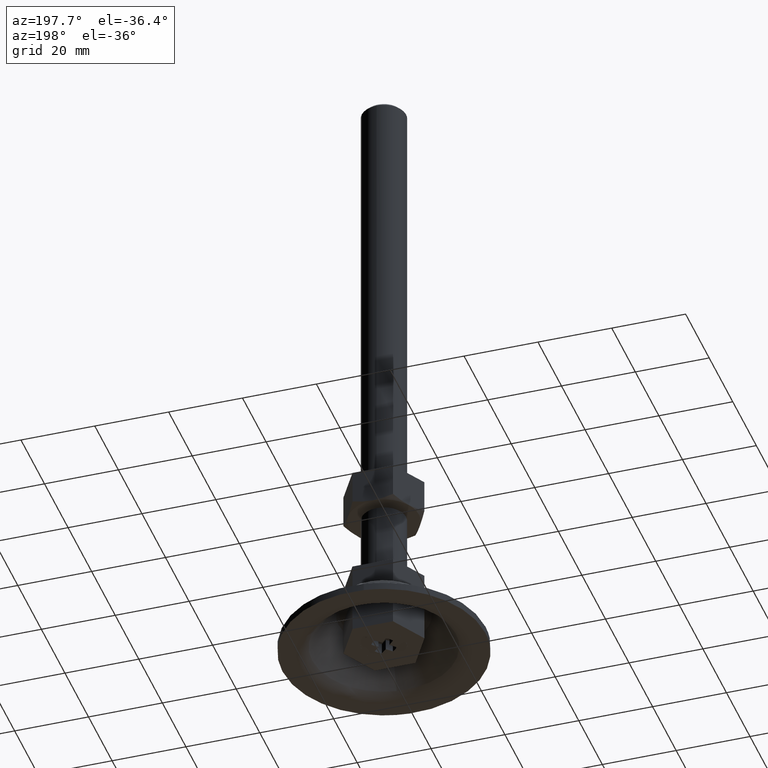
[diagram: clean part render]
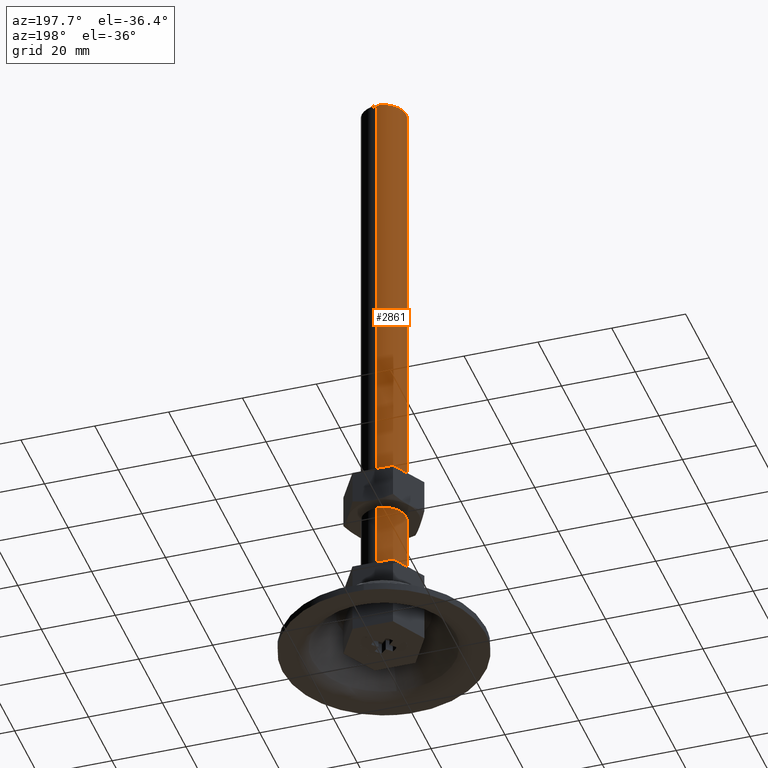
[diagram: same view with one face highlighted and labeled with its STEP entity id]
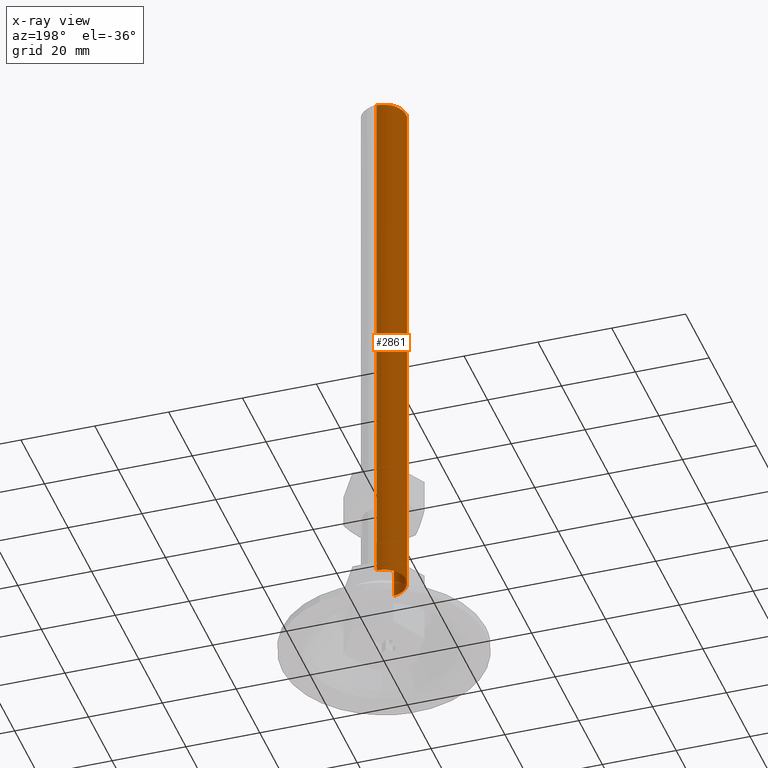
[diagram: x-ray of the same camera — body ghosted, the highlighted face saturated]
A machine part, auxiliary view. The second image highlights one B-rep face of the part: STEP entity #2861.
The next image is the same camera in x-ray: the body ghosted, the highlighted face saturated — about 1% of this face is hidden behind the body in this view.
In plain terms, the highlighted face is a freeform B-spline surface patch.
Its self-contained STEP definition (entity closure, byte-faithful):
#2618=CARTESIAN_POINT('',(-0.744768012860743,-5.953597282905475,171.0));
#2619=VERTEX_POINT('',#2618);
#2676=CARTESIAN_POINT('',(0.052359213310933,5.999771538382044,171.000000000000200));
#2677=VERTEX_POINT('',#2676);
#2683=CARTESIAN_POINT('',(-6.0,0.0,171.0));
#2684=VERTEX_POINT('',#2683);
#2685=CARTESIAN_POINT('',(-6.0,0.0,171.0));
#2686=CARTESIAN_POINT('',(-6.0,6.0,170.999999999999940));
#2687=CARTESIAN_POINT('',(0.0,6.0,171.0));
#2688=CARTESIAN_POINT('',(0.026180105565643,6.0,171.000000000000060));
#2689=CARTESIAN_POINT('',(0.052359213310933,5.999771538382044,171.000000000000140));
#2697=(BOUNDED_CURVE()B_SPLINE_CURVE(2,(#2685,#2686,#2687,#2688,#2689),.UNSPECIFIED.,.F.,.U.)B_SPLINE_CURVE_WITH_KNOTS((3,2,3),(0.500000000000000,0.750000000000000,0.751539894372648),.UNSPECIFIED.)CURVE()GEOMETRIC_REPRESENTATION_ITEM()RATIONAL_B_SPLINE_CURVE((1.0,0.707106781186548,1.0,0.998195901522250,0.996414028013249))REPRESENTATION_ITEM(''));
#2698=EDGE_CURVE('',#2684,#2677,#2697,.T.);
#2700=CARTESIAN_POINT('',(-0.744768012860743,-5.953597282905475,170.999999999999970));
#2701=CARTESIAN_POINT('',(-6.0,-5.296191600216858,171.000000000000110));
#2702=CARTESIAN_POINT('',(-6.0,0.0,171.0));
#2710=(BOUNDED_CURVE()B_SPLINE_CURVE(2,(#2700,#2701,#2702),.UNSPECIFIED.,.F.,.U.)B_SPLINE_CURVE_WITH_KNOTS((3,3),(0.271473928992330,0.500000000000000),.UNSPECIFIED.)CURVE()GEOMETRIC_REPRESENTATION_ITEM()RATIONAL_B_SPLINE_CURVE((0.954005430232746,0.732265053919087,1.0))REPRESENTATION_ITEM(''));
#2711=EDGE_CURVE('',#2619,#2684,#2710,.T.);
#2795=CARTESIAN_POINT('',(-0.744768012478976,-5.953597282953231,174.725000000000080));
#2796=CARTESIAN_POINT('',(-6.046396983014668,-5.290387548799326,174.725000000000020));
#2797=CARTESIAN_POINT('',(-5.999771538385026,0.052359212990243,174.724999999999990));
#2798=CARTESIAN_POINT('',(-5.947412325394783,6.052130751375269,174.724999999999970));
#2799=CARTESIAN_POINT('',(0.052359212990243,5.999771538385026,174.724999999999990));
#2800=CARTESIAN_POINT('',(-0.744768012478976,-5.953597282953231,18.181874999999998));
#2801=CARTESIAN_POINT('',(-6.046396983014668,-5.290387548799326,18.181874999999987));
#2802=CARTESIAN_POINT('',(-5.999771538385026,0.052359212990243,18.181874999999991));
#2803=CARTESIAN_POINT('',(-5.947412325394783,6.052130751375269,18.181874999999987));
#2804=CARTESIAN_POINT('',(0.052359212990243,5.999771538385026,18.181874999999991));
#2812=(BOUNDED_SURFACE()B_SPLINE_SURFACE(2,1,((#2795,#2800),(#2796,#2801),(#2797,#2802),(#2798,#2803),(#2799,#2804)),.UNSPECIFIED.,.F.,.F.,.U.)B_SPLINE_SURFACE_WITH_KNOTS((3,2,3),(2,2),(0.0,9.145835457197935,19.086960954152211),(0.0,156.543125000000090),.UNSPECIFIED.)GEOMETRIC_REPRESENTATION_ITEM()RATIONAL_B_SPLINE_SURFACE(((0.956886118190660,0.956886118190660),(0.730538238691624,0.730538238691624),(1.0,1.0),(0.707106781186548,0.707106781186548),(1.0,1.0)))REPRESENTATION_ITEM('')SURFACE());
#2813=ORIENTED_EDGE('',*,*,#2711,.T.);
#2814=ORIENTED_EDGE('',*,*,#2698,.T.);
#2815=CARTESIAN_POINT('',(0.052359213585666,5.999771538379831,22.0));
#2816=VERTEX_POINT('',#2815);
#2817=CARTESIAN_POINT('',(0.052359213310933,5.999771538382044,171.000000000000200));
#2818=CARTESIAN_POINT('',(0.052359213585666,5.999771538379831,22.0));
#2819=QUASI_UNIFORM_CURVE('',1,(#2817,#2818),.UNSPECIFIED.,.F.,.U.);
#2820=EDGE_CURVE('',#2677,#2816,#2819,.T.);
#2821=ORIENTED_EDGE('',*,*,#2820,.T.);
#2822=CARTESIAN_POINT('',(-6.0,0.0,22.0));
#2823=VERTEX_POINT('',#2822);
#2824=CARTESIAN_POINT('',(0.052359213585666,5.999771538379831,22.0));
#2825=CARTESIAN_POINT('',(0.026180105519667,6.0,21.999999999999993));
#2826=CARTESIAN_POINT('',(0.0,6.0,22.0));
#2827=CARTESIAN_POINT('',(-6.0,6.0,22.000000000000007));
#2828=CARTESIAN_POINT('',(-6.0,0.0,22.0));
#2836=(BOUNDED_CURVE()B_SPLINE_CURVE(2,(#2824,#2825,#2826,#2827,#2828),.UNSPECIFIED.,.F.,.U.)B_SPLINE_CURVE_WITH_KNOTS((3,2,3),(0.248460105630052,0.250000000000000,0.500000000000000),.UNSPECIFIED.)CURVE()GEOMETRIC_REPRESENTATION_ITEM()RATIONAL_B_SPLINE_CURVE((0.996414028019496,0.998195901525412,1.0,0.707106781186548,1.0))REPRESENTATION_ITEM(''));
#2837=EDGE_CURVE('',#2816,#2823,#2836,.T.);
#2838=ORIENTED_EDGE('',*,*,#2837,.T.);
#2839=CARTESIAN_POINT('',(-0.744768012896881,-5.953597282900955,22.0));
#2840=VERTEX_POINT('',#2839);
#2841=CARTESIAN_POINT('',(-6.0,0.0,22.0));
#2842=CARTESIAN_POINT('',(-6.000000000000001,-5.296191600152078,22.000000000000007));
#2843=CARTESIAN_POINT('',(-0.744768012896881,-5.953597282900955,22.000000000000004));
#2851=(BOUNDED_CURVE()B_SPLINE_CURVE(2,(#2841,#2842,#2843),.UNSPECIFIED.,.F.,.U.)B_SPLINE_CURVE_WITH_KNOTS((3,3),(0.500000000000000,0.728526071005624),.UNSPECIFIED.)CURVE()GEOMETRIC_REPRESENTATION_ITEM()RATIONAL_B_SPLINE_CURVE((1.0,0.732265053921485,0.954005430228774))REPRESENTATION_ITEM(''));
#2852=EDGE_CURVE('',#2823,#2840,#2851,.T.);
#2853=ORIENTED_EDGE('',*,*,#2852,.T.);
#2854=CARTESIAN_POINT('',(-0.744768012860743,-5.953597282905475,171.0));
#2855=CARTESIAN_POINT('',(-0.744768012896881,-5.953597282900955,22.0));
#2856=QUASI_UNIFORM_CURVE('',1,(#2854,#2855),.UNSPECIFIED.,.F.,.U.);
#2857=EDGE_CURVE('',#2619,#2840,#2856,.T.);
#2858=ORIENTED_EDGE('',*,*,#2857,.F.);
#2859=EDGE_LOOP('',(#2813,#2814,#2821,#2838,#2853,#2858));
#2860=FACE_OUTER_BOUND('',#2859,.T.);
#2861=ADVANCED_FACE('',(#2860),#2812,.T.);